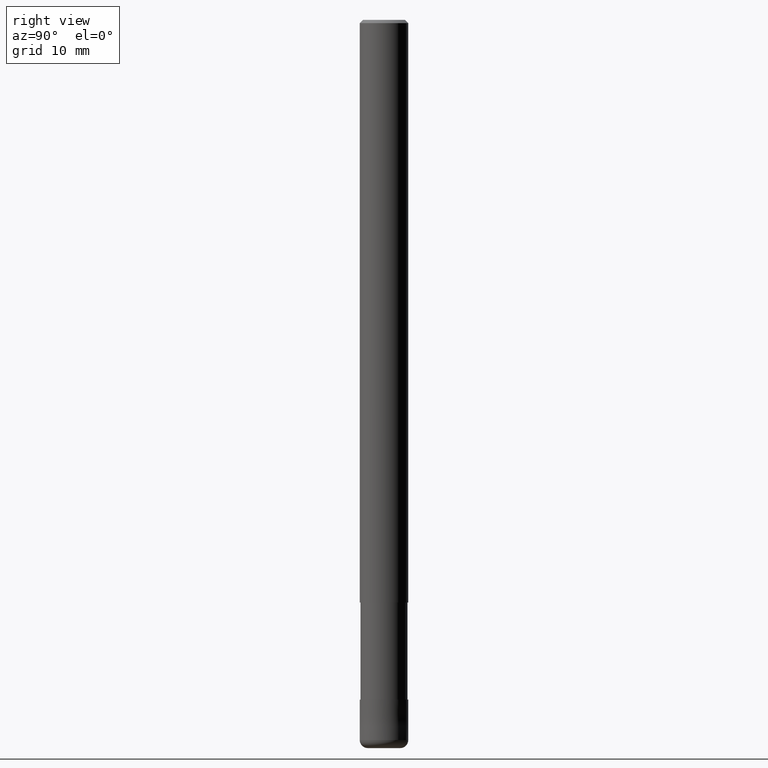
[diagram: clean part render]
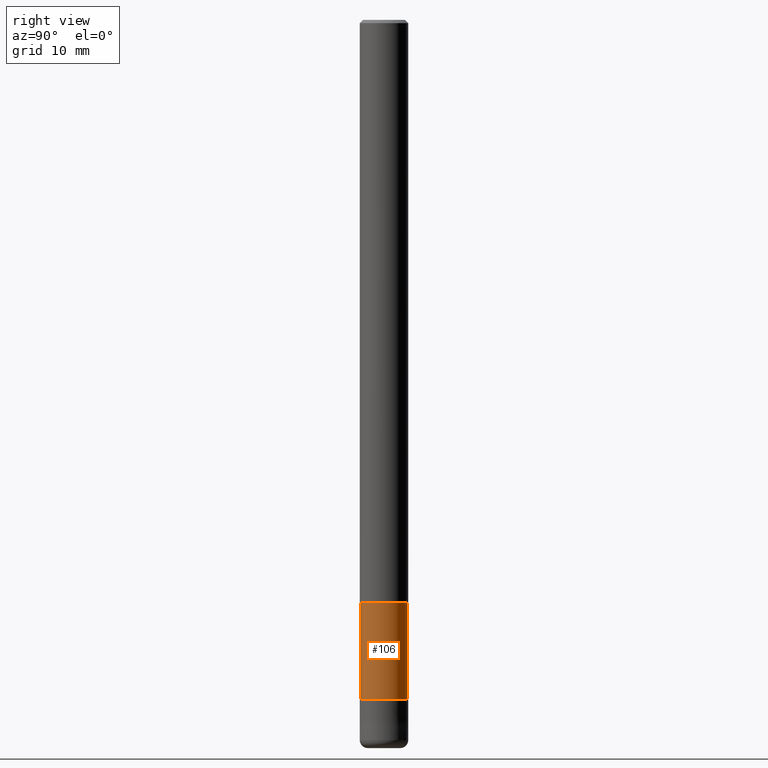
[diagram: same view with one face highlighted and labeled with its STEP entity id]
A machine part, right view. The second image highlights one B-rep face of the part: STEP entity #106.
In plain terms, the highlighted cylindrical surface (edge-blend (fillet) strip) has radius 2.9099 mm, axis along (-0, -0, 1).
Its self-contained STEP definition (entity closure, byte-faithful):
#106=ADVANCED_FACE('',(#245),#246,.T.);
#108=EDGE_CURVE('',#120,#176,#248,.T.);
#110=VERTEX_POINT('',#250);
#114=EDGE_CURVE('',#110,#120,#254,.T.);
#120=VERTEX_POINT('',#260);
#128=EDGE_CURVE('',#176,#142,#270,.T.);
#142=VERTEX_POINT('',#286);
#176=VERTEX_POINT('',#324);
#204=EDGE_CURVE('',#110,#142,#357,.T.);
#245=FACE_OUTER_BOUND('',#395,.T.);
#246=CYLINDRICAL_SURFACE('',#396,2.90995);
#248=CIRCLE('',#399,2.90995);
#250=CARTESIAN_POINT('',(0.0,2.90995,-72.0));
#254=LINE('',#406,#407);
#260=CARTESIAN_POINT('',(0.0,2.90995,-84.0));
#270=LINE('',#425,#426);
#286=CARTESIAN_POINT('',(3.56354325930543E-016,-2.90995,-72.0));
#324=CARTESIAN_POINT('',(3.56354325930543E-016,-2.90995,-84.0));
#357=CIRCLE('',#532,2.90995);
#395=EDGE_LOOP('',(#564,#565,#566,#567));
#396=AXIS2_PLACEMENT_3D('',#568,#569,#570);
#399=AXIS2_PLACEMENT_3D('',#571,#572,#573);
#406=CARTESIAN_POINT('',(-3.56354325930543E-016,2.90995,-78.0));
#407=VECTOR('',#574,1.0);
#425=CARTESIAN_POINT('',(3.56354325930543E-016,-2.90995,-78.0));
#426=VECTOR('',#592,1.0);
#532=AXIS2_PLACEMENT_3D('',#707,#708,#709);
#564=ORIENTED_EDGE('',*,*,#114,.F.);
#565=ORIENTED_EDGE('',*,*,#204,.T.);
#566=ORIENTED_EDGE('',*,*,#128,.F.);
#567=ORIENTED_EDGE('',*,*,#108,.F.);
#568=CARTESIAN_POINT('',(0.0,0.0,-78.0));
#569=DIRECTION('',(-0.0,-0.0,1.0));
#570=DIRECTION('',(0.0,1.0,0.0));
#571=CARTESIAN_POINT('',(0.0,0.0,-84.0));
#572=DIRECTION('',(0.0,0.0,-1.0));
#573=DIRECTION('',(0.0,1.0,0.0));
#574=DIRECTION('',(0.0,0.0,-1.0));
#592=DIRECTION('',(-0.0,-0.0,1.0));
#707=CARTESIAN_POINT('',(0.0,0.0,-72.0));
#708=DIRECTION('',(0.0,0.0,-1.0));
#709=DIRECTION('',(0.0,1.0,0.0));